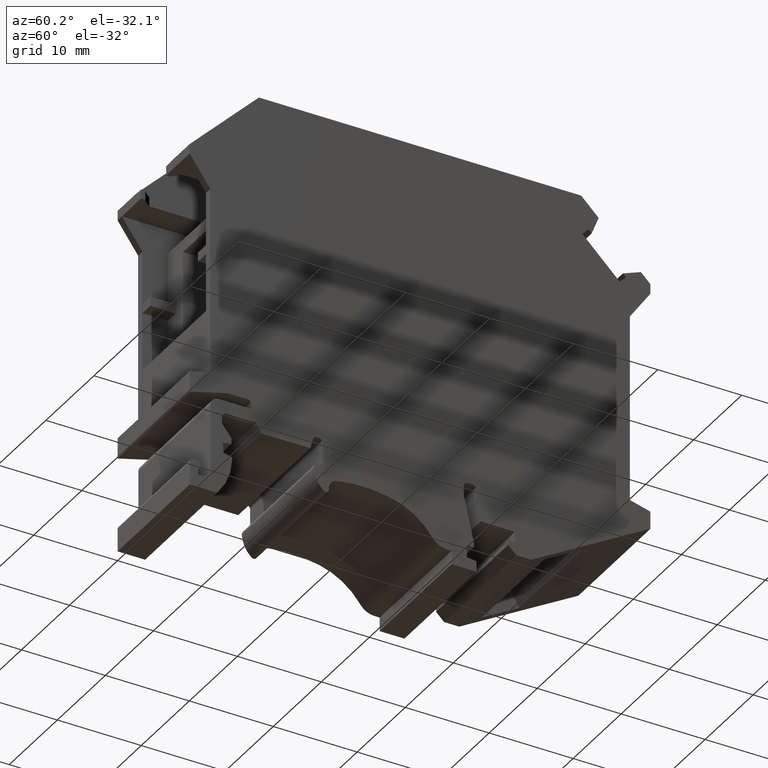
[diagram: clean part render]
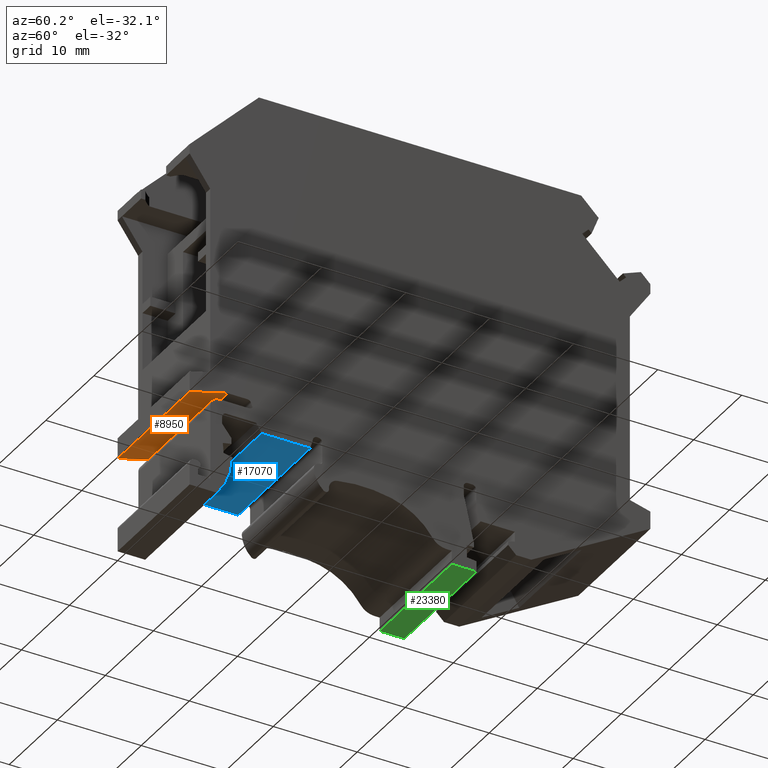
[diagram: same view with three faces highlighted in distinct colors, each labeled with its STEP entity id]
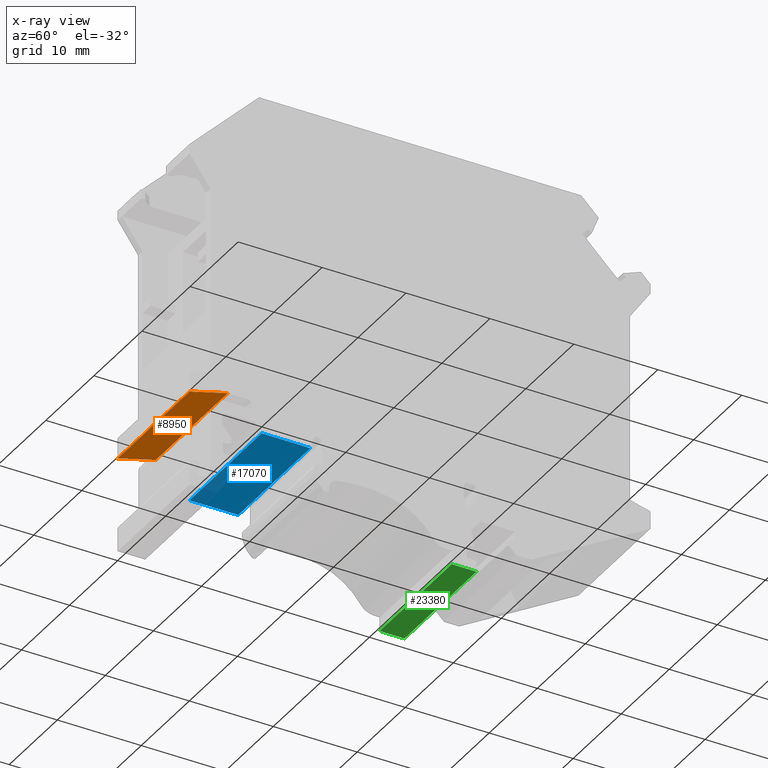
[diagram: x-ray of the same camera — body ghosted, the three highlighted faces saturated]
A machine part, auxiliary view with three faces highlighted in distinct colors.
The next image is the same camera in x-ray (body ghosted, the three faces saturated) — at least one of them is partly hidden behind the body in this view.
Their STEP definitions:

[orange] entity #8950 — the highlighted planar face has unit normal (0, -0.2588, 0.9659).
#6890=CARTESIAN_POINT('',(-95.0205036307845,268.954310306645,7.4));
#6900=VERTEX_POINT('',#6890);
#6930=CARTESIAN_POINT('',(-134.15880229048,258.467234787652,7.4));
#6940=DIRECTION('',(-0.965925826289068,-0.258819045102521,0.));
#6950=VECTOR('',#6940,1.);
#6960=LINE('',#6930,#6950);
#6970=CARTESIAN_POINT('',(-99.5615658524048,267.737536351583,7.4));
#6980=VERTEX_POINT('',#6970);
#6990=EDGE_CURVE('',#6900,#6980,#6960,.T.);
#8520=CARTESIAN_POINT('',(-95.0205036307845,268.954310306645,-7.6));
#8530=VERTEX_POINT('',#8520);
#8560=CARTESIAN_POINT('',(-95.0205036307845,268.954310306645,
-0.0999999999999996));
#8570=DIRECTION('',(0.,0.,-1.));
#8580=VECTOR('',#8570,1.);
#8590=LINE('',#8560,#8580);
#8600=EDGE_CURVE('',#6900,#8530,#8590,.T.);
#8720=CARTESIAN_POINT('',(-95.0205036307845,268.954310306645,7.4));
#8730=DIRECTION('',(-0.258819045102521,0.965925826289068,0.));
#8740=DIRECTION('',(0.965925826289068,0.258819045102521,0.));
#8750=AXIS2_PLACEMENT_3D('',#8720,#8730,#8740);
#8760=PLANE('',#8750);
#8770=ORIENTED_EDGE('',*,*,#6990,.T.);
#8780=ORIENTED_EDGE('',*,*,#8600,.F.);
#8790=CARTESIAN_POINT('',(-134.15880229048,258.467234787652,-7.6));
#8800=DIRECTION('',(-0.965925826289068,-0.258819045102521,0.));
#8810=VECTOR('',#8800,1.);
#8820=LINE('',#8790,#8810);
#8830=CARTESIAN_POINT('',(-99.5615658524048,267.737536351583,-7.6));
#8840=VERTEX_POINT('',#8830);
#8850=EDGE_CURVE('',#8530,#8840,#8820,.T.);
#8860=ORIENTED_EDGE('',*,*,#8850,.F.);
#8870=CARTESIAN_POINT('',(-99.5615658524048,267.737536351583,0.));
#8880=DIRECTION('',(0.,0.,1.));
#8890=VECTOR('',#8880,1.);
#8900=LINE('',#8870,#8890);
#8910=EDGE_CURVE('',#8840,#6980,#8900,.T.);
#8920=ORIENTED_EDGE('',*,*,#8910,.F.);
#8930=EDGE_LOOP('',(#8920,#8860,#8780,#8770));
#8940=FACE_OUTER_BOUND('',#8930,.T.);
#8950=ADVANCED_FACE('',(#8940),#8760,.F.);

[blue] entity #17070 — the highlighted planar face has unit normal (0, 0, 1).
#4740=CARTESIAN_POINT('',(-85.1865658524047,265.304310306645,7.4));
#4750=VERTEX_POINT('',#4740);
#4780=CARTESIAN_POINT('',(-134.15880229048,265.304310306645,7.4));
#4790=DIRECTION('',(1.,0.,0.));
#4800=VECTOR('',#4790,1.);
#4810=LINE('',#4780,#4800);
#4820=CARTESIAN_POINT('',(-90.9865658524048,265.304310306645,7.4));
#4830=VERTEX_POINT('',#4820);
#4840=EDGE_CURVE('',#4830,#4750,#4810,.T.);
#10810=CARTESIAN_POINT('',(-90.9865658524048,265.304310306645,
-0.0999999999999996));
#10820=DIRECTION('',(0.,0.,-1.));
#10830=VECTOR('',#10820,1.);
#10840=LINE('',#10810,#10830);
#10850=CARTESIAN_POINT('',(-90.9865658524048,265.304310306645,-7.6));
#10860=VERTEX_POINT('',#10850);
#10870=EDGE_CURVE('',#4830,#10860,#10840,.T.);
#16840=CARTESIAN_POINT('',(-85.1865658524048,265.304310306645,7.4));
#16850=DIRECTION('',(-0.,1.,0.));
#16860=DIRECTION('',(1.,0.,0.));
#16870=AXIS2_PLACEMENT_3D('',#16840,#16850,#16860);
#16880=PLANE('',#16870);
#16890=ORIENTED_EDGE('',*,*,#4840,.F.);
#16900=CARTESIAN_POINT('',(-85.1865658524048,265.304310306645,
-0.0999999999999996));
#16910=DIRECTION('',(0.,0.,-1.));
#16920=VECTOR('',#16910,1.);
#16930=LINE('',#16900,#16920);
#16940=CARTESIAN_POINT('',(-85.1865658524048,265.304310306645,-7.6));
#16950=VERTEX_POINT('',#16940);
#16960=EDGE_CURVE('',#4750,#16950,#16930,.T.);
#16970=ORIENTED_EDGE('',*,*,#16960,.F.);
#16980=CARTESIAN_POINT('',(-134.15880229048,265.304310306645,-7.6));
#16990=DIRECTION('',(-1.,0.,0.));
#17000=VECTOR('',#16990,1.);
#17010=LINE('',#16980,#17000);
#17020=EDGE_CURVE('',#16950,#10860,#17010,.T.);
#17030=ORIENTED_EDGE('',*,*,#17020,.F.);
#17040=ORIENTED_EDGE('',*,*,#10870,.T.);
#17050=EDGE_LOOP('',(#17040,#17030,#16970,#16890));
#17060=FACE_OUTER_BOUND('',#17050,.T.);
#17070=ADVANCED_FACE('',(#17060),#16880,.F.);

[green] entity #23380 — the highlighted planar face has unit normal (0, 0, 1).
#3360=CARTESIAN_POINT('',(-65.3865658524048,256.404310306645,7.4));
#3370=VERTEX_POINT('',#3360);
#3400=CARTESIAN_POINT('',(-134.15880229048,256.404310306645,7.4));
#3410=DIRECTION('',(-1.,0.,0.));
#3420=VECTOR('',#3410,1.);
#3430=LINE('',#3400,#3420);
#3440=CARTESIAN_POINT('',(-68.3365658524048,256.404310306645,7.4));
#3450=VERTEX_POINT('',#3440);
#3460=EDGE_CURVE('',#3370,#3450,#3430,.T.);
#22950=CARTESIAN_POINT('',(-65.3865658524046,256.404310306645,-7.6));
#22960=VERTEX_POINT('',#22950);
#22990=CARTESIAN_POINT('',(-65.3865658524046,256.404310306645,
-0.0999999999999996));
#23000=DIRECTION('',(0.,0.,-1.));
#23010=VECTOR('',#23000,1.);
#23020=LINE('',#22990,#23010);
#23030=EDGE_CURVE('',#3370,#22960,#23020,.T.);
#23150=CARTESIAN_POINT('',(-65.3865658524048,256.404310306645,7.4));
#23160=DIRECTION('',(-0.,1.,0.));
#23170=DIRECTION('',(1.,0.,0.));
#23180=AXIS2_PLACEMENT_3D('',#23150,#23160,#23170);
#23190=PLANE('',#23180);
#23200=ORIENTED_EDGE('',*,*,#3460,.T.);
#23210=ORIENTED_EDGE('',*,*,#23030,.F.);
#23220=CARTESIAN_POINT('',(-134.15880229048,256.404310306645,-7.6));
#23230=DIRECTION('',(-1.,0.,0.));
#23240=VECTOR('',#23230,1.);
#23250=LINE('',#23220,#23240);
#23260=CARTESIAN_POINT('',(-68.3365658524048,256.404310306645,-7.6));
#23270=VERTEX_POINT('',#23260);
#23280=EDGE_CURVE('',#22960,#23270,#23250,.T.);
#23290=ORIENTED_EDGE('',*,*,#23280,.F.);
#23300=CARTESIAN_POINT('',(-68.3365658524048,256.404310306645,
-0.0999999999999996));
#23310=DIRECTION('',(0.,0.,-1.));
#23320=VECTOR('',#23310,1.);
#23330=LINE('',#23300,#23320);
#23340=EDGE_CURVE('',#3450,#23270,#23330,.T.);
#23350=ORIENTED_EDGE('',*,*,#23340,.T.);
#23360=EDGE_LOOP('',(#23350,#23290,#23210,#23200));
#23370=FACE_OUTER_BOUND('',#23360,.T.);
#23380=ADVANCED_FACE('',(#23370),#23190,.F.);